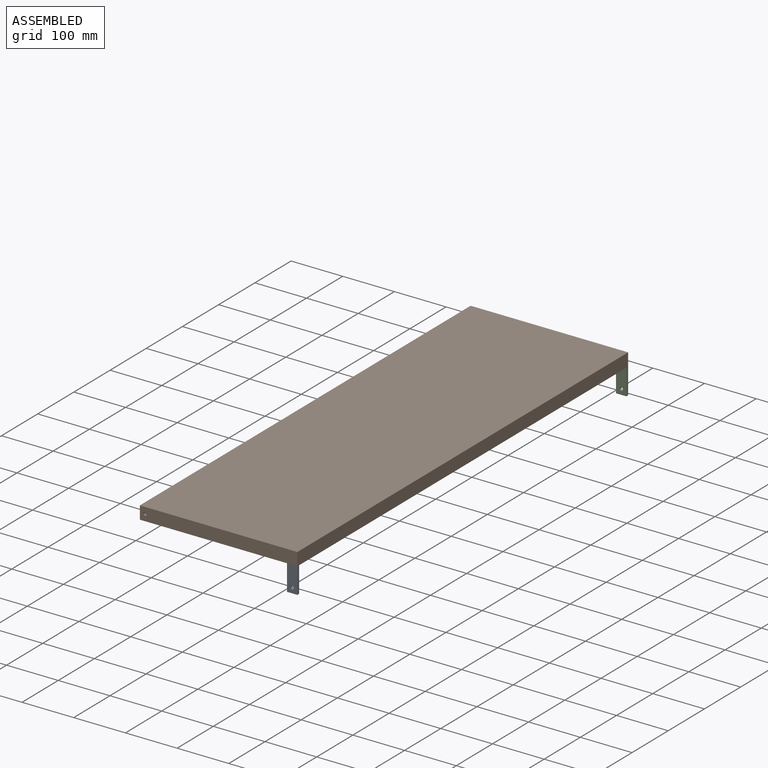
[diagram: assembled view]
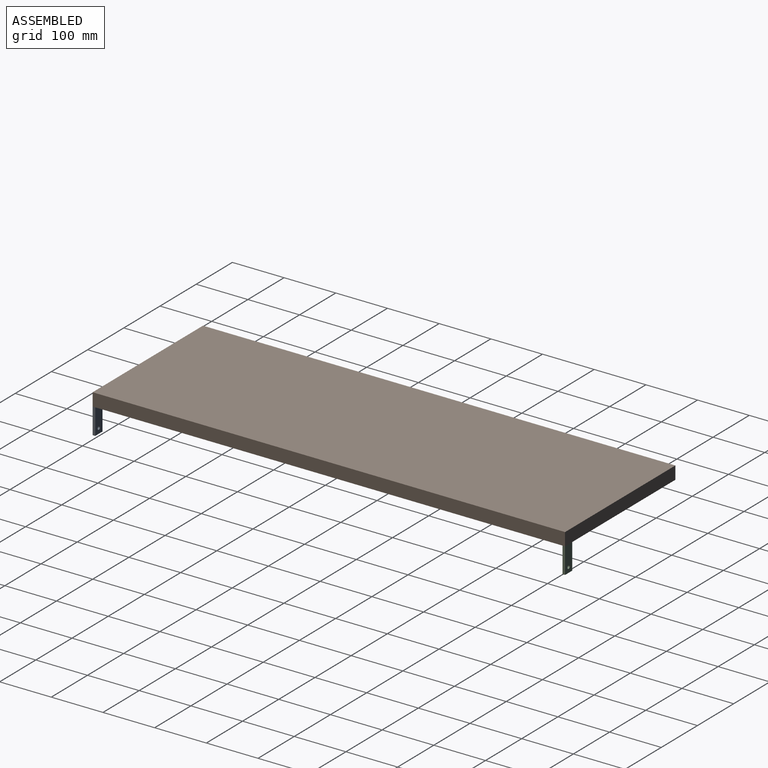
[diagram: assembled view, second angle]
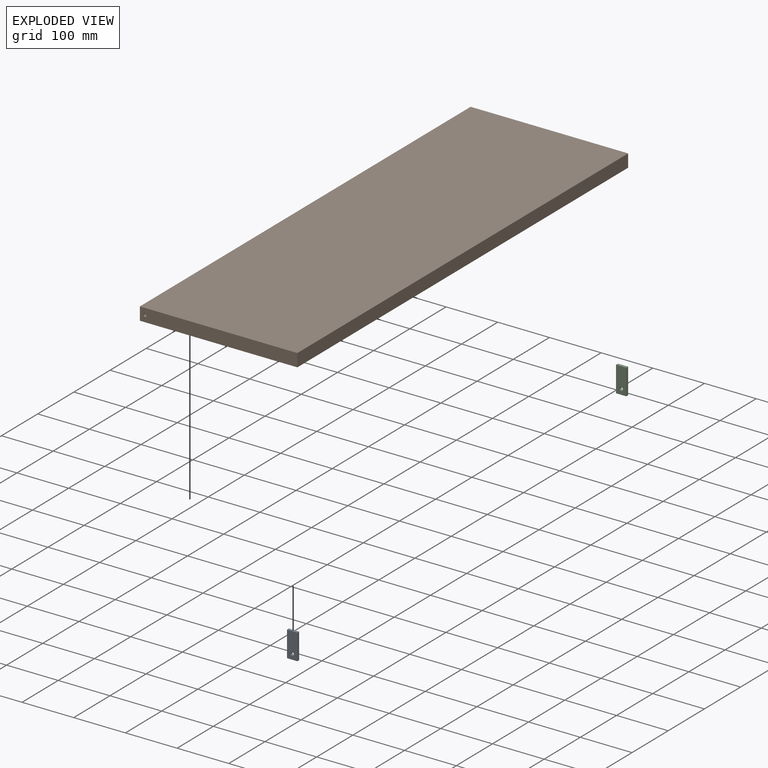
[diagram: exploded view]
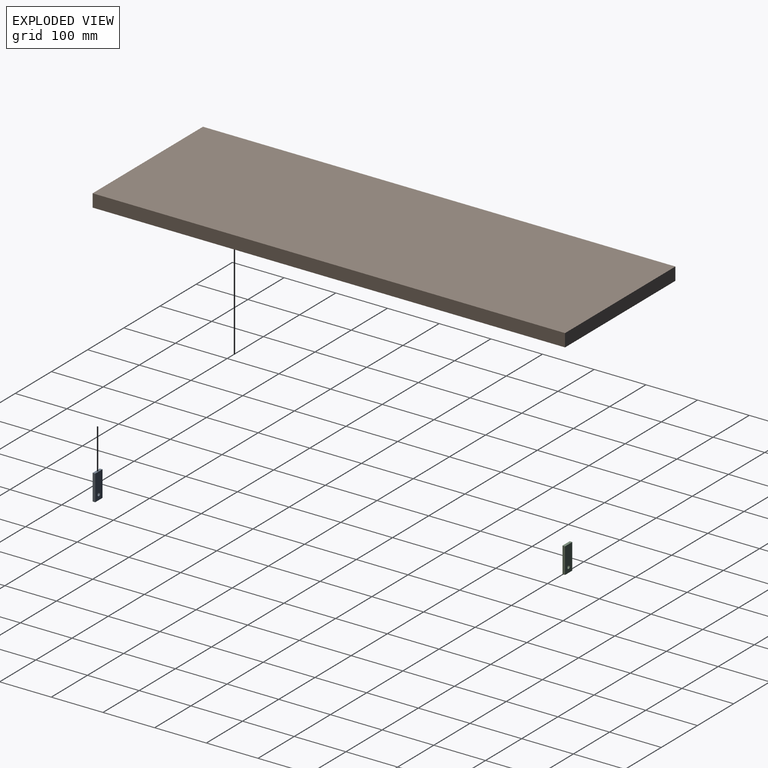
[diagram: exploded view, second angle]
ASSEMBLY  parts=3 mates=2
PART A: 7 faces, bbox 20x5x50 mm
  f0: plane 50x5mm, normal (1,0,0), area 250mm2, adj f1,f3,f4,f5
  f1: plane 50x20mm, normal (0,1,0), area 968.3mm2, adj f0,f2,f4,f5,f6
  f2: plane 50x5mm, normal (-1,0,0), area 250mm2, adj f1,f3,f4,f5
  f3: plane 50x20mm, normal (0,-1,0), area 968.3mm2, adj f0,f2,f4,f5,f6
  f4: plane 20x5mm, normal (0,0,-1), area 100mm2, adj f0,f1,f2,f3
  f5: plane 20x5mm, normal (0,0,1), area 100mm2, adj f0,f1,f2,f3
  f6: cylinder r=3.17mm len=6.35mm, axis (0,1,0), area 99.7mm2, adj f1,f3
PART B: 8 faces, bbox 304.8x914x25 mm
  f0: plane 304.8x25mm, normal (0,-1,0), area 7588.3mm2, adj f1,f3,f4,f5,f6
  f1: plane 914x25mm, normal (1,0,0), area 22850mm2, adj f0,f2,f4,f5
  f2: plane 304.8x25mm, normal (0,1,0), area 7620mm2, adj f1,f3,f4,f5
  f3: plane 914x25mm, normal (-1,0,0), area 22850mm2, adj f0,f2,f4,f5
  f4: plane 914x304.8mm, normal (0,0,1), area 278587.2mm2, adj f0,f1,f2,f3
  f5: plane 914x304.8mm, normal (0,0,-1), area 278587.2mm2, adj f0,f1,f2,f3
  f6: cylinder r=3.17mm len=6.35mm, axis (0,-1,0), area 99.7mm2, adj f0,f7
  f7: plane 6.35x6.35mm, normal (0,-1,0), area 31.7mm2, adj f6
PART C: same geometry as A
PLACE A t=(-465.36,7.83,13.28)mm
PLACE B t=(-465.36,7.83,13.28)mm
PLACE C t=(-465.36,916.83,13.28)mm
MATE fastened C.f5 <-> B.f5  axis (0,0,1) through (-312.96,464.83,13.28)mm
MATE fastened A.f5 <-> B.f5  axis (0,0,1) through (-312.96,-449.17,13.28)mm
